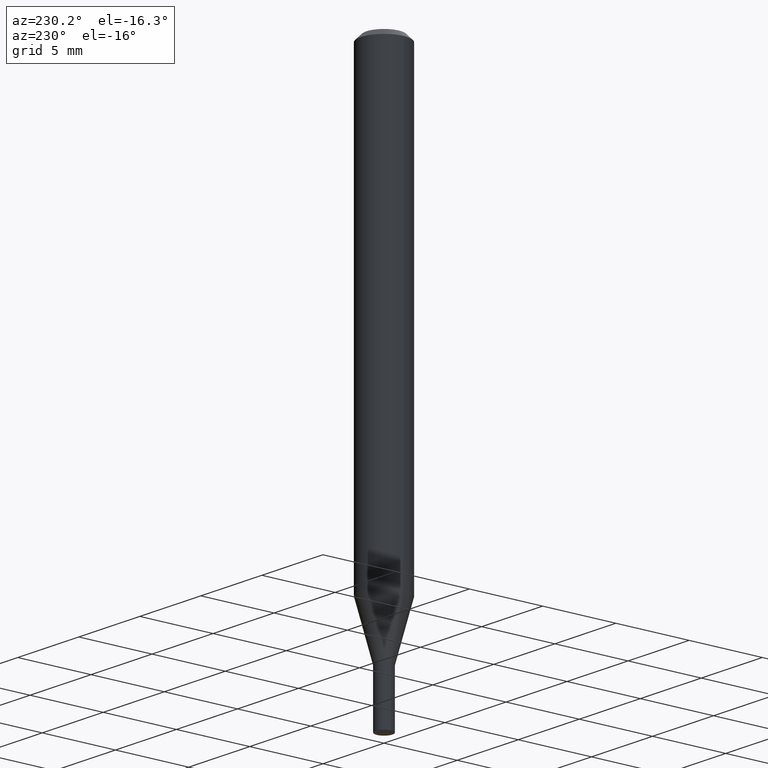
[diagram: clean part render]
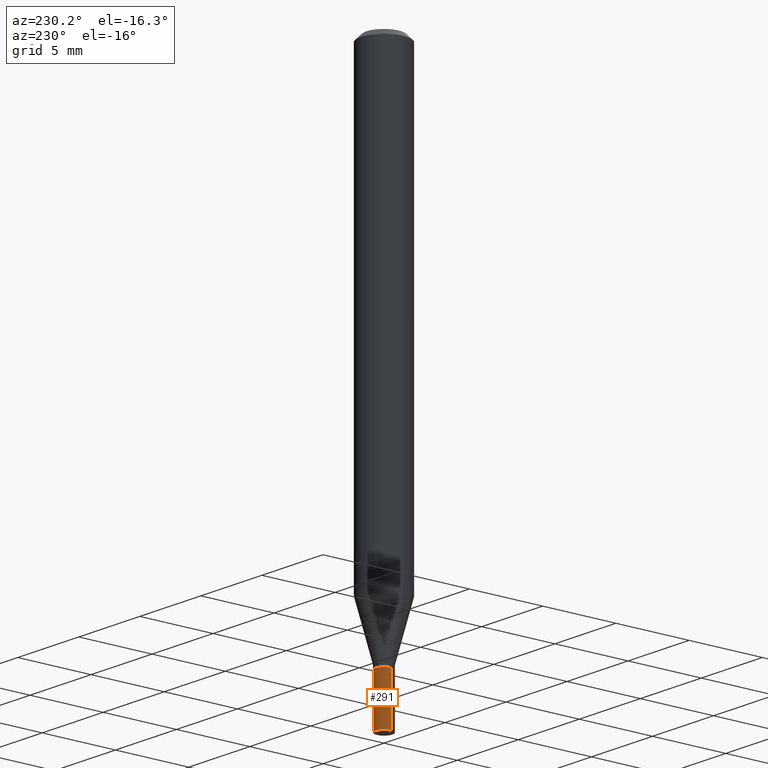
[diagram: same view with one face highlighted and labeled with its STEP entity id]
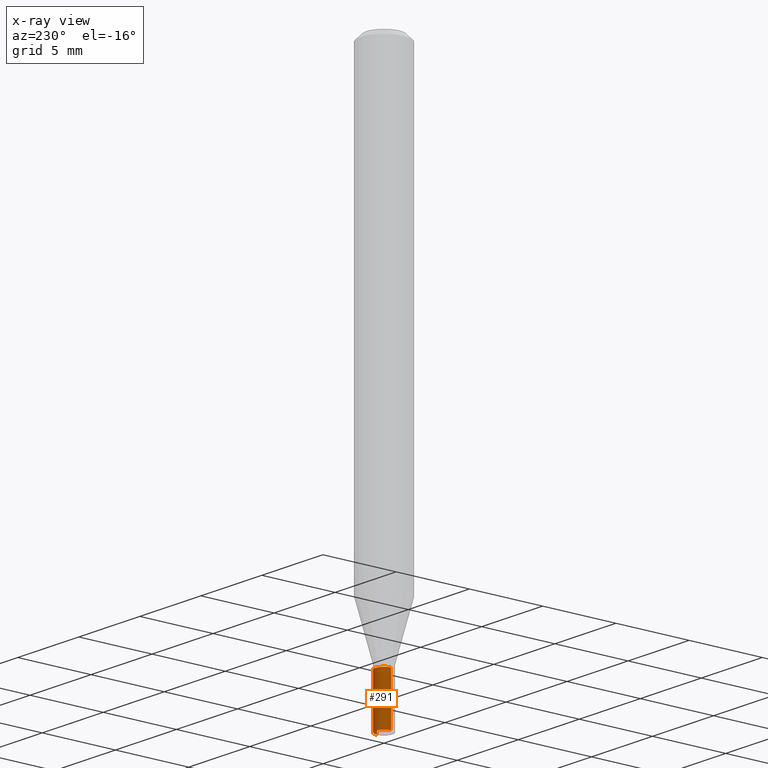
[diagram: x-ray of the same camera — body ghosted, the highlighted face saturated]
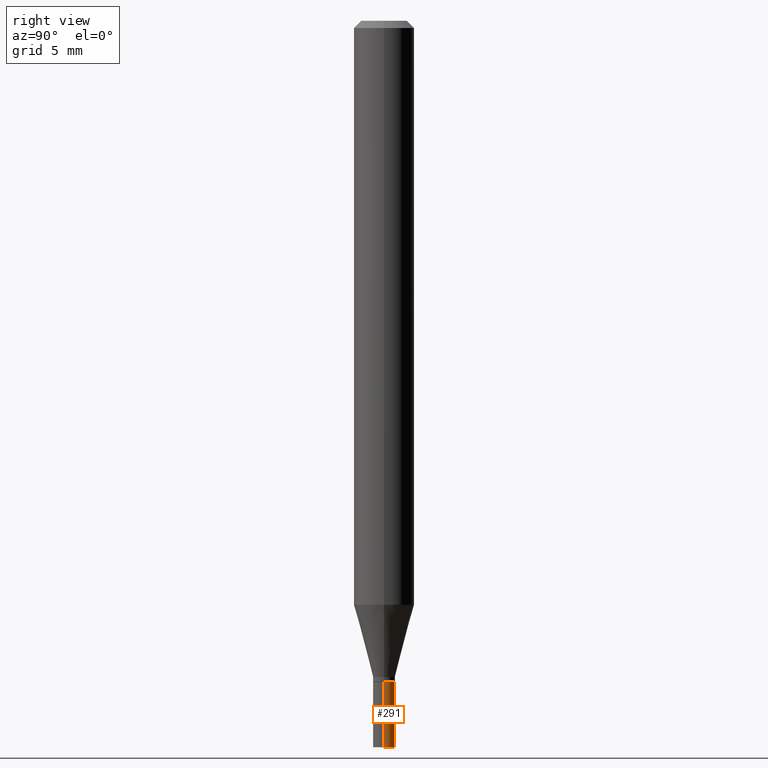
[diagram: same view with one face highlighted and labeled with its STEP entity id]
A machine part, auxiliary view. The second image highlights one B-rep face of the part: STEP entity #291.
The next image is the same camera in x-ray: the body ghosted, the highlighted face saturated — about 0% of this face is hidden behind the body in this view.
A second angle (right view) of the same face is appended — the face is thin or edge-on in the first view.
In plain terms, the highlighted cylindrical surface (edge-blend (fillet) strip) has radius 0.5715 mm, axis along (-0, 0, 1).
Its self-contained STEP definition (entity closure, byte-faithful):
#4 = VECTOR ( 'NONE', #171, 39.37007874015748143 ) ;
#24 = EDGE_CURVE ( 'NONE', #101, #58, #335, .T. ) ;
#26 = CARTESIAN_POINT ( 'NONE',  ( -0.02249999999999999917, 1.598721155460225359E-16, -1.106760395307353780E-30 ) ) ;
#27 = LINE ( 'NONE', #26, #188 ) ;
#31 = EDGE_CURVE ( 'NONE', #187, #58, #27, .T. ) ;
#52 = EDGE_LOOP ( 'NONE', ( #425, #447, #154, #122 ) ) ;
#58 = VERTEX_POINT ( 'NONE', #263 ) ;
#65 = DIRECTION ( 'NONE',  ( -2.445468806185136597E-29, 3.491481338843145583E-15, 1.000000000000000000 ) ) ;
#71 = CYLINDRICAL_SURFACE ( 'NONE', #437, 0.02249999999999999917 ) ;
#81 = CARTESIAN_POINT ( 'NONE',  ( 0.02249999999999999917, -4.922988687768834913E-15, -1.364999999999999991 ) ) ;
#98 = CARTESIAN_POINT ( 'NONE',  ( 3.338064920442711836E-29, -4.765872027520893280E-15, -1.364999999999999991 ) ) ;
#101 = VERTEX_POINT ( 'NONE', #81 ) ;
#103 = FACE_OUTER_BOUND ( 'NONE', #52, .T. ) ;
#121 = CIRCLE ( 'NONE', #206, 0.02249999999999999917 ) ;
#122 = ORIENTED_EDGE ( 'NONE', *, *, #254, .F. ) ;
#131 = DIRECTION ( 'NONE',  ( -2.445468806185136877E-29, 3.491481338843145188E-15, 1.000000000000000000 ) ) ;
#143 = CARTESIAN_POINT ( 'NONE',  ( -0.02249999999999999917, -4.841674902346784228E-15, -1.500000000000000222 ) ) ;
#154 = ORIENTED_EDGE ( 'NONE', *, *, #24, .F. ) ;
#161 = DIRECTION ( 'NONE',  ( 1.000000000000000000, -6.982962677686269077E-15, 0.000000000000000000 ) ) ;
#166 = VERTEX_POINT ( 'NONE', #227 ) ;
#171 = DIRECTION ( 'NONE',  ( -2.445468806185136877E-29, 3.491481338843145188E-15, 1.000000000000000000 ) ) ;
#182 = CARTESIAN_POINT ( 'NONE',  ( 3.668203209277704895E-29, -5.237222008264718177E-15, -1.500000000000000222 ) ) ;
#187 = VERTEX_POINT ( 'NONE', #143 ) ;
#188 = VECTOR ( 'NONE', #131, 39.37007874015748143 ) ;
#205 = AXIS2_PLACEMENT_3D ( 'NONE', #98, #65, #161 ) ;
#206 = AXIS2_PLACEMENT_3D ( 'NONE', #182, #251, #211 ) ;
#211 = DIRECTION ( 'NONE',  ( 1.000000000000000000, -6.982962677686269077E-15, 0.000000000000000000 ) ) ;
#227 = CARTESIAN_POINT ( 'NONE',  ( 0.02249999999999999917, -5.394338668512659809E-15, -1.500000000000000222 ) ) ;
#251 = DIRECTION ( 'NONE',  ( -2.445468806185136597E-29, 3.491481338843145583E-15, 1.000000000000000000 ) ) ;
#254 = EDGE_CURVE ( 'NONE', #166, #101, #384, .T. ) ;
#263 = CARTESIAN_POINT ( 'NONE',  ( -0.02249999999999999917, -4.841674902346784228E-15, -1.364999999999999991 ) ) ;
#291 = ADVANCED_FACE ( 'NONE', ( #103 ), #71, .T. ) ;
#308 = EDGE_CURVE ( 'NONE', #166, #187, #121, .T. ) ;
#335 = CIRCLE ( 'NONE', #205, 0.02249999999999999917 ) ;
#384 = LINE ( 'NONE', #413, #4 ) ;
#413 = CARTESIAN_POINT ( 'NONE',  ( 0.02249999999999999917, -1.571166602479409911E-16, 1.097139774554085483E-30 ) ) ;
#425 = ORIENTED_EDGE ( 'NONE', *, *, #308, .T. ) ;
#426 = CARTESIAN_POINT ( 'NONE',  ( 0.000000000000000000, 0.000000000000000000, 0.000000000000000000 ) ) ;
#433 = DIRECTION ( 'NONE',  ( 1.000000000000000000, -6.982962677686266711E-15, 4.876176775795935793E-29 ) ) ;
#437 = AXIS2_PLACEMENT_3D ( 'NONE', #426, #466, #433 ) ;
#447 = ORIENTED_EDGE ( 'NONE', *, *, #31, .T. ) ;
#466 = DIRECTION ( 'NONE',  ( -2.445468806185136597E-29, 3.491481338843145583E-15, 1.000000000000000000 ) ) ;